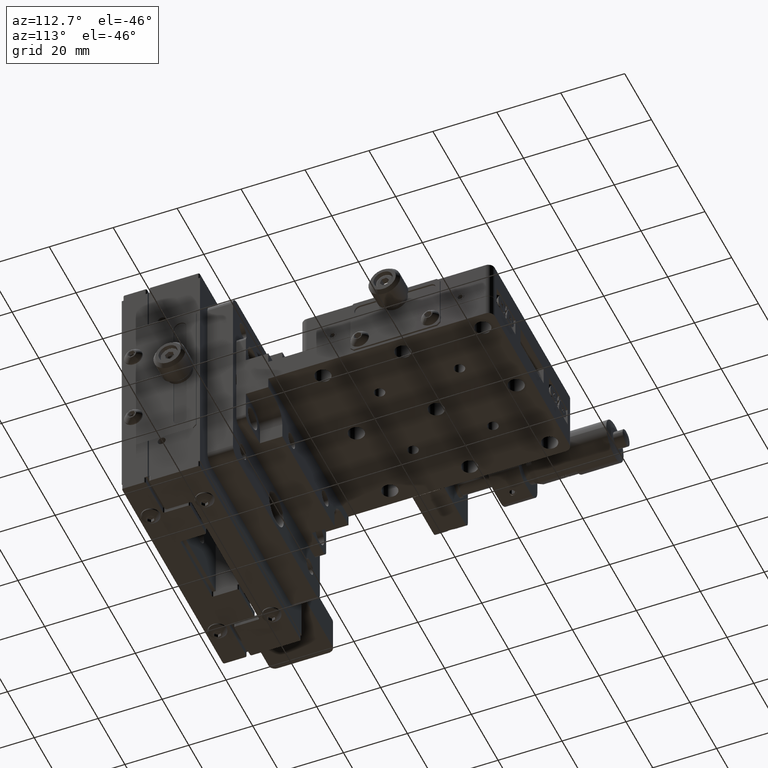
[diagram: clean part render]
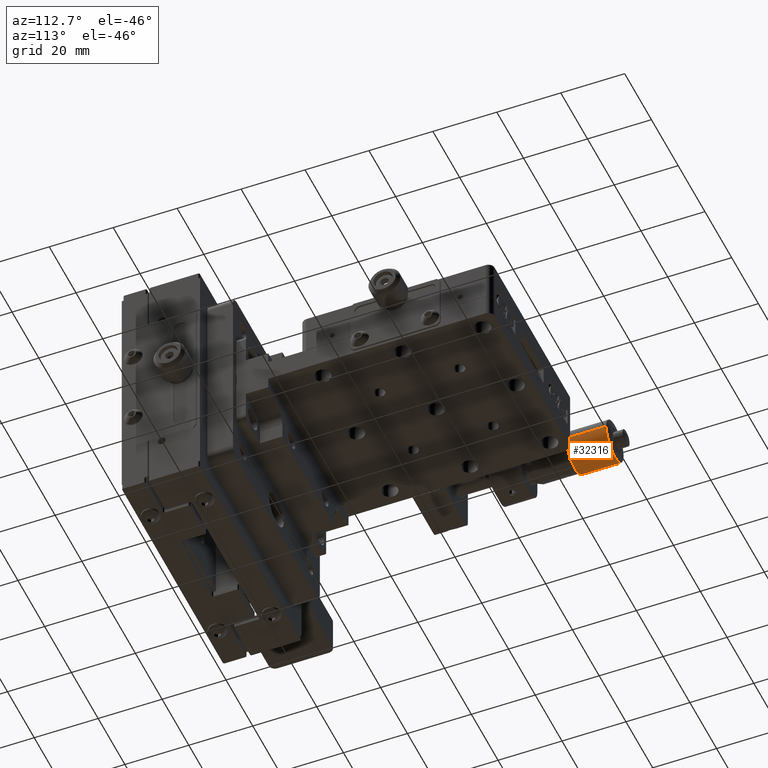
[diagram: same view with one face highlighted and labeled with its STEP entity id]
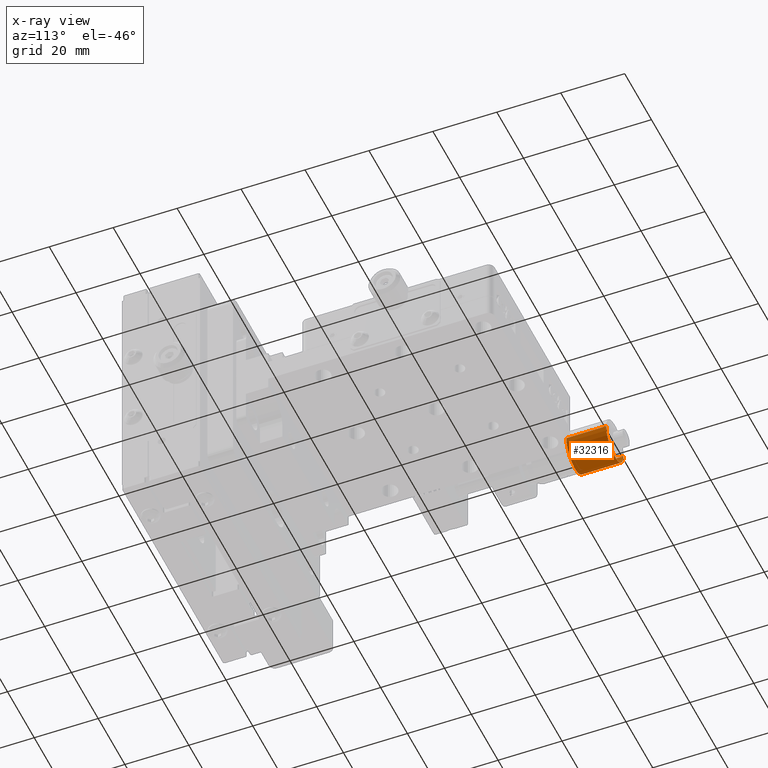
[diagram: x-ray of the same camera — body ghosted, the highlighted face saturated]
A machine part, auxiliary view. The second image highlights one B-rep face of the part: STEP entity #32316.
The next image is the same camera in x-ray: the body ghosted, the highlighted face saturated — about 0% of this face is hidden behind the body in this view.
In plain terms, the highlighted cylindrical surface (edge-blend (fillet) strip) has radius 6.5 mm, axis along (-0, 1, 0).
Its self-contained STEP definition (entity closure, byte-faithful):
#225 = DIRECTION ( 'NONE',  ( -2.798949741030963000E-016, 1.000000000000000000, 1.836446883694288300E-015 ) ) ;
#445 = EDGE_CURVE ( 'NONE', #30162, #46041, #53058, .T. ) ;
#1925 = CIRCLE ( 'NONE', #62473, 6.500000000000012400 ) ;
#7031 = ORIENTED_EDGE ( 'NONE', *, *, #445, .T. ) ;
#7250 = DIRECTION ( 'NONE',  ( -2.798949741030963000E-016, 1.000000000000000000, 1.836446883694288300E-015 ) ) ;
#8368 = LINE ( 'NONE', #40729, #35283 ) ;
#11072 = FACE_OUTER_BOUND ( 'NONE', #33498, .T. ) ;
#12719 = VECTOR ( 'NONE', #18386, 1000.000000000000000 ) ;
#12808 = CARTESIAN_POINT ( 'NONE',  ( -33.50000000000005000, 109.1500000000001900, 5.800000000055970200 ) ) ;
#13286 = CARTESIAN_POINT ( 'NONE',  ( -46.50000000000007800, 138.1910230692078300, 5.800000000056035900 ) ) ;
#18386 = DIRECTION ( 'NONE',  ( -2.798949741030963000E-016, 1.000000000000000000, 1.836446883694288300E-015 ) ) ;
#19000 = DIRECTION ( 'NONE',  ( -2.798949741030963000E-016, 1.000000000000000000, 1.836446883694288300E-015 ) ) ;
#25874 = VERTEX_POINT ( 'NONE', #12808 ) ;
#28427 = CARTESIAN_POINT ( 'NONE',  ( -46.50000000000006400, 109.1500000000001900, 5.800000000055994100 ) ) ;
#29685 = DIRECTION ( 'NONE',  ( 1.000000000000000000, 0.0000000000000000000, -9.340818716798174100E-016 ) ) ;
#30162 = VERTEX_POINT ( 'NONE', #28427 ) ;
#31683 = CYLINDRICAL_SURFACE ( 'NONE', #52980, 6.500000000000012400 ) ;
#32316 = ADVANCED_FACE ( 'NONE', ( #11072 ), #31683, .T. ) ;
#33498 = EDGE_LOOP ( 'NONE', ( #58587, #7031, #49948, #41964 ) ) ;
#34527 = DIRECTION ( 'NONE',  ( -2.798949741030963000E-016, 1.000000000000000000, 1.836446883694288300E-015 ) ) ;
#34660 = EDGE_CURVE ( 'NONE', #25874, #40878, #8368, .T. ) ;
#34958 = EDGE_CURVE ( 'NONE', #40878, #46041, #1925, .T. ) ;
#35283 = VECTOR ( 'NONE', #225, 1000.000000000000000 ) ;
#35715 = CARTESIAN_POINT ( 'NONE',  ( -33.50000000000000000, 121.6500000000001900, 5.800000000055963900 ) ) ;
#37574 = CARTESIAN_POINT ( 'NONE',  ( -40.00000000000006400, 109.1500000000001900, 5.800000000055976400 ) ) ;
#40729 = CARTESIAN_POINT ( 'NONE',  ( -33.50000000000005000, 138.1910230692078300, 5.800000000056023500 ) ) ;
#40795 = CIRCLE ( 'NONE', #46159, 6.500000000000012400 ) ;
#40878 = VERTEX_POINT ( 'NONE', #35715 ) ;
#41964 = ORIENTED_EDGE ( 'NONE', *, *, #34660, .F. ) ;
#42628 = DIRECTION ( 'NONE',  ( 1.000000000000000000, 0.0000000000000000000, -9.340818716798174100E-016 ) ) ;
#46041 = VERTEX_POINT ( 'NONE', #65151 ) ;
#46159 = AXIS2_PLACEMENT_3D ( 'NONE', #37574, #7250, #42628 ) ;
#49285 = CARTESIAN_POINT ( 'NONE',  ( -40.00000000000001400, 121.6500000000001900, 5.800000000055971100 ) ) ;
#49948 = ORIENTED_EDGE ( 'NONE', *, *, #34958, .F. ) ;
#52980 = AXIS2_PLACEMENT_3D ( 'NONE', #64765, #34527, #29685 ) ;
#53058 = LINE ( 'NONE', #13286, #12719 ) ;
#54328 = DIRECTION ( 'NONE',  ( 1.000000000000000000, 0.0000000000000000000, -9.340818716798174100E-016 ) ) ;
#58587 = ORIENTED_EDGE ( 'NONE', *, *, #65513, .T. ) ;
#62473 = AXIS2_PLACEMENT_3D ( 'NONE', #49285, #19000, #54328 ) ;
#64765 = CARTESIAN_POINT ( 'NONE',  ( -40.00000000000006400, 138.1910230692078300, 5.800000000056029700 ) ) ;
#65151 = CARTESIAN_POINT ( 'NONE',  ( -46.50000000000003600, 121.6500000000001900, 5.800000000055978200 ) ) ;
#65513 = EDGE_CURVE ( 'NONE', #25874, #30162, #40795, .T. ) ;